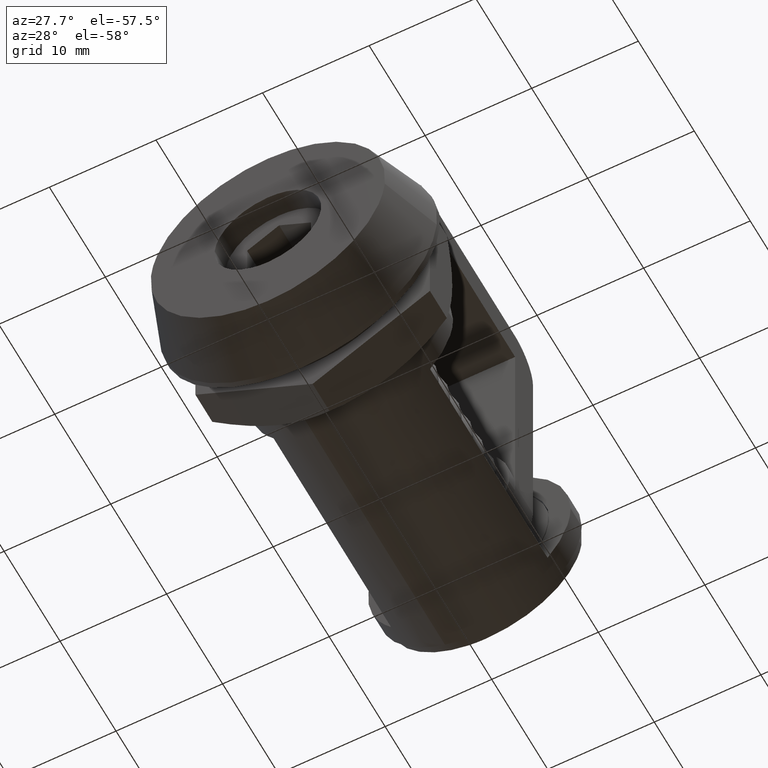
[diagram: clean part render]
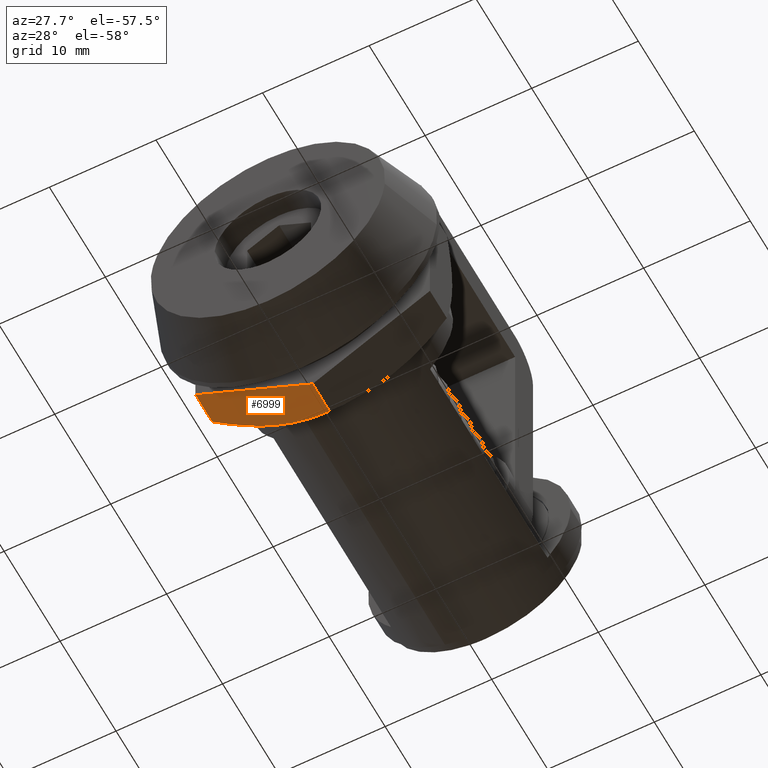
[diagram: same view with one face highlighted and labeled with its STEP entity id]
A machine part, auxiliary view. The second image highlights one B-rep face of the part: STEP entity #6999.
In plain terms, the highlighted face is a freeform B-spline surface patch.
Its self-contained STEP definition (entity closure, byte-faithful):
#6941=CARTESIAN_POINT('',(0.548105232915543,7.800200007752882,-13.018154625939660));
#6942=CARTESIAN_POINT('',(-11.548105331241221,7.800200007752882,-6.034404200549355));
#6943=CARTESIAN_POINT('',(0.548105232915543,12.199800099535580,-13.018154625939660));
#6944=CARTESIAN_POINT('',(-11.548105331241221,12.199800099535580,-6.034404200549355));
#6945=B_SPLINE_SURFACE_WITH_KNOTS('',1,1,((#6941,#6943),(#6942,#6944)),.UNSPECIFIED.,.F.,.F.,.U.,(2,2),(2,2),(0.0,13.967500850780610),(0.0,4.399600091782699),.UNSPECIFIED.);
#6946=CARTESIAN_POINT('',(-0.001222795020832,8.000000000000101,-12.700999941137200));
#6947=VERTEX_POINT('',#6946);
#6948=CARTESIAN_POINT('',(-10.998777204979060,8.000000000000119,-6.351558942120260));
#6949=VERTEX_POINT('',#6948);
#6950=CARTESIAN_POINT('',(-0.001222795020832,8.000000000000101,-12.700999941137200));
#6951=CARTESIAN_POINT('',(-10.998777204979060,8.000000000000119,-6.351558942120260));
#6952=QUASI_UNIFORM_CURVE('',1,(#6950,#6951),.UNSPECIFIED.,.F.,.U.);
#6953=EDGE_CURVE('',#6947,#6949,#6952,.T.);
#6954=ORIENTED_EDGE('',*,*,#6953,.T.);
#6955=CARTESIAN_POINT('',(-10.998777204979060,11.018000000000001,-6.351558942120250));
#6956=VERTEX_POINT('',#6955);
#6957=CARTESIAN_POINT('',(-10.998777204979060,11.018000000000001,-6.351558942120250));
#6958=CARTESIAN_POINT('',(-10.998777204979060,8.000000000000119,-6.351558942120260));
#6959=QUASI_UNIFORM_CURVE('',1,(#6957,#6958),.UNSPECIFIED.,.F.,.U.);
#6960=EDGE_CURVE('',#6956,#6949,#6959,.T.);
#6961=ORIENTED_EDGE('',*,*,#6960,.F.);
#6962=CARTESIAN_POINT('',(-5.499999999999940,12.0,-9.526279441628731));
#6963=VERTEX_POINT('',#6962);
#6964=CARTESIAN_POINT('',(-5.499999999999940,12.0,-9.526279441628731));
#6965=CARTESIAN_POINT('',(-5.730271455595415,11.999998713089029,-9.393332154753985));
#6966=CARTESIAN_POINT('',(-5.961659925944737,11.994392313507870,-9.259739959110425));
#6967=CARTESIAN_POINT('',(-6.425883957174245,11.971971308882720,-8.991720089715777));
#6968=CARTESIAN_POINT('',(-6.658938129684136,11.955013493650620,-8.857166200481426));
#6969=CARTESIAN_POINT('',(-7.355769310619688,11.887887213976070,-8.454850530588560));
#6970=CARTESIAN_POINT('',(-7.817209531966050,11.821427917682900,-8.188437894579314));
#6971=CARTESIAN_POINT('',(-9.193317265739314,11.564793864068459,-7.393941724051403));
#6972=CARTESIAN_POINT('',(-10.099803789611711,11.317585622569331,-6.870581485476904));
#6973=CARTESIAN_POINT('',(-10.998777204979060,11.018000000000010,-6.351558942120247));
#6974=B_SPLINE_CURVE_WITH_KNOTS('',3,(#6964,#6965,#6966,#6967,#6968,#6969,#6970,#6971,#6972,#6973),.UNSPECIFIED.,.F.,.U.,(4,2,2,2,4),(0.500937718883551,0.562499999999999,0.624999999999999,0.749999999999999,1.0),.UNSPECIFIED.);
#6975=EDGE_CURVE('',#6963,#6956,#6974,.T.);
#6976=ORIENTED_EDGE('',*,*,#6975,.F.);
#6977=CARTESIAN_POINT('',(-0.001222795020825,11.018000000000001,-12.700999941137200));
#6978=VERTEX_POINT('',#6977);
#6979=CARTESIAN_POINT('',(-0.001222795020819,11.018000000000010,-12.700999941137191));
#6980=CARTESIAN_POINT('',(-0.899076741923488,11.317212556301509,-12.182623723199971));
#6981=CARTESIAN_POINT('',(-1.803473457125795,11.563809640022869,-11.660470036223700));
#6982=CARTESIAN_POINT('',(-3.174205661515197,11.820017629843260,-10.869077429032590));
#6983=CARTESIAN_POINT('',(-3.633478220040341,11.886427037365589,-10.603916293736701));
#6984=CARTESIAN_POINT('',(-4.557368315081427,11.976262740363961,-10.070508098663090));
#6985=CARTESIAN_POINT('',(-5.021990466089559,11.999651927130660,-9.802258374707085));
#6986=CARTESIAN_POINT('',(-5.492985253362241,11.999998708657831,-9.530329407488290));
#6987=CARTESIAN_POINT('',(-5.496492497190108,11.999999989976590,-9.528304499320157));
#6988=CARTESIAN_POINT('',(-5.499999999999940,12.0,-9.526279441628731));
#6989=B_SPLINE_CURVE_WITH_KNOTS('',3,(#6979,#6980,#6981,#6982,#6983,#6984,#6985,#6986,#6987,#6988),.UNSPECIFIED.,.F.,.U.,(4,2,2,2,4),(0.0,0.250000000000000,0.375000000000000,0.499999999999999,0.500937718855024),.UNSPECIFIED.);
#6990=EDGE_CURVE('',#6978,#6963,#6989,.T.);
#6991=ORIENTED_EDGE('',*,*,#6990,.F.);
#6992=CARTESIAN_POINT('',(-0.001222795020832,8.000000000000101,-12.700999941137200));
#6993=CARTESIAN_POINT('',(-0.001222795020825,11.018000000000001,-12.700999941137200));
#6994=QUASI_UNIFORM_CURVE('',1,(#6992,#6993),.UNSPECIFIED.,.F.,.U.);
#6995=EDGE_CURVE('',#6947,#6978,#6994,.T.);
#6996=ORIENTED_EDGE('',*,*,#6995,.F.);
#6997=EDGE_LOOP('',(#6954,#6961,#6976,#6991,#6996));
#6998=FACE_OUTER_BOUND('',#6997,.T.);
#6999=ADVANCED_FACE('',(#6998),#6945,.T.);